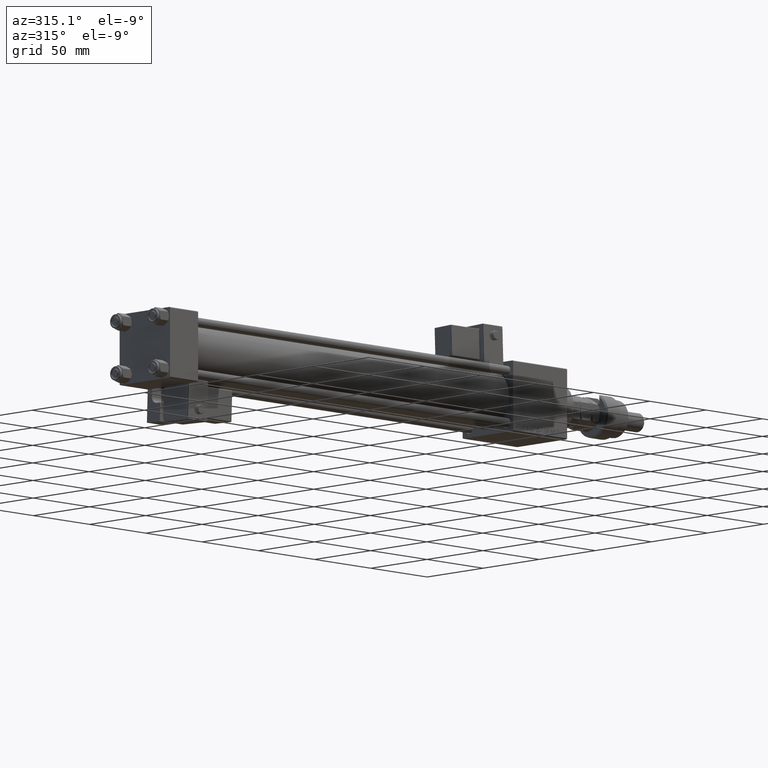
[diagram: clean part render]
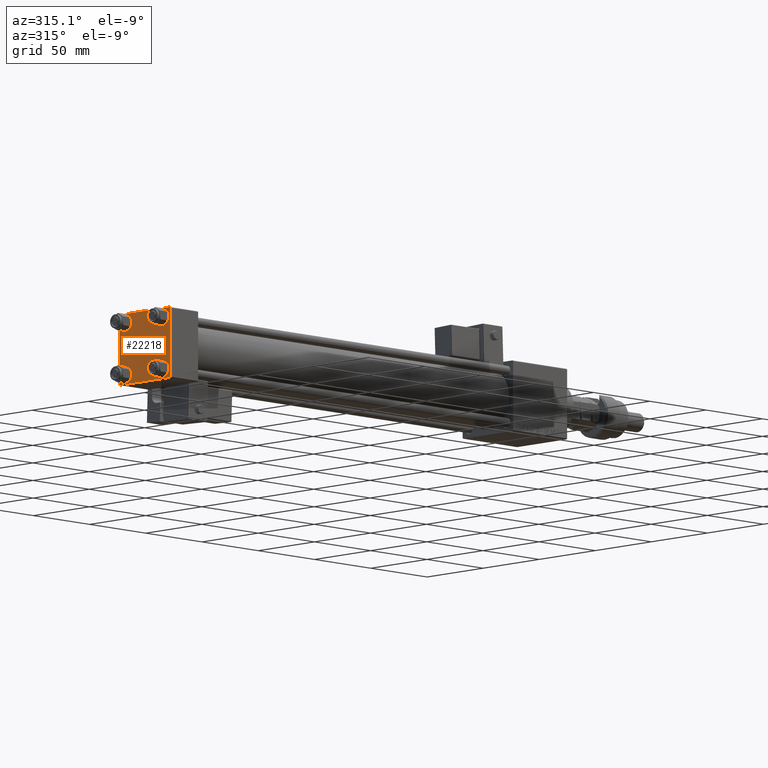
[diagram: same view with one face highlighted and labeled with its STEP entity id]
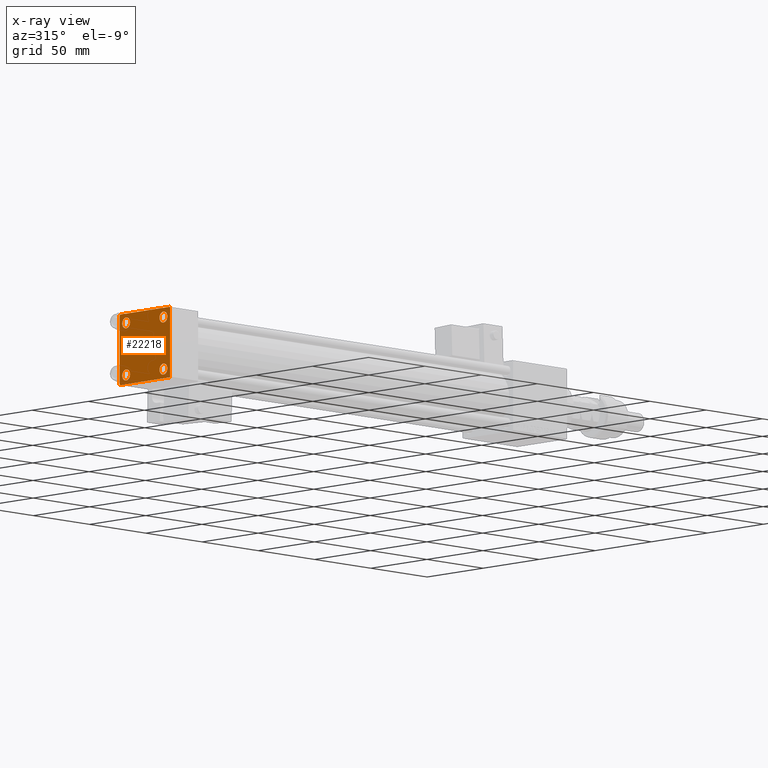
[diagram: x-ray of the same camera — body ghosted, the highlighted face saturated]
A machine part, auxiliary view. The second image highlights one B-rep face of the part: STEP entity #22218.
The next image is the same camera in x-ray: the body ghosted, the highlighted face saturated — about 0% of this face is hidden behind the body in this view.
In plain terms, the highlighted planar face has unit normal (-1, 0, 0).
Its self-contained STEP definition (entity closure, byte-faithful):
#746 = VECTOR ( 'NONE', #19546, 1000.000000000000114 ) ;
#1652 = EDGE_CURVE ( 'NONE', #17018, #5823, #42712, .T. ) ;
#1965 = EDGE_CURVE ( 'NONE', #40800, #10811, #4201, .T. ) ;
#2687 = DIRECTION ( 'NONE',  ( 0.000000000000000000, 0.000000000000000000, 1.000000000000000000 ) ) ;
#4185 = VERTEX_POINT ( 'NONE', #24151 ) ;
#4201 = CIRCLE ( 'NONE', #39191, 3.499999999999996003 ) ;
#4871 = CIRCLE ( 'NONE', #43356, 3.499999999999996003 ) ;
#5004 = ORIENTED_EDGE ( 'NONE', *, *, #20326, .T. ) ;
#5823 = VERTEX_POINT ( 'NONE', #10537 ) ;
#5930 = DIRECTION ( 'NONE',  ( 0.000000000000000000, 0.000000000000000000, 1.000000000000000000 ) ) ;
#5954 = DIRECTION ( 'NONE',  ( 0.000000000000000000, -1.000000000000000000, -7.709882115452476934E-17 ) ) ;
#6087 = CARTESIAN_POINT ( 'NONE',  ( 0.000000000000000000, 16.59999999999999787, -16.60000000000000497 ) ) ;
#6561 = DIRECTION ( 'NONE',  ( 0.000000000000000000, 0.000000000000000000, 1.000000000000000000 ) ) ;
#7610 = ORIENTED_EDGE ( 'NONE', *, *, #42105, .T. ) ;
#8315 = EDGE_CURVE ( 'NONE', #11201, #17018, #38627, .T. ) ;
#8803 = CARTESIAN_POINT ( 'NONE',  ( 0.000000000000000000, -21.99999999999997158, -22.50000000000000711 ) ) ;
#10010 = DIRECTION ( 'NONE',  ( -0.000000000000000000, -0.7071067811865426878, -0.7071067811865524577 ) ) ;
#10407 = EDGE_CURVE ( 'NONE', #28787, #4185, #35845, .T. ) ;
#10412 = CARTESIAN_POINT ( 'NONE',  ( 0.000000000000000000, 16.59999999999999787, 16.60000000000000497 ) ) ;
#10537 = CARTESIAN_POINT ( 'NONE',  ( 0.000000000000000000, -22.50000000000000000, -21.99999999999997158 ) ) ;
#10549 = CARTESIAN_POINT ( 'NONE',  ( 0.000000000000000000, 16.59999999999999787, -13.10000000000000675 ) ) ;
#10811 = VERTEX_POINT ( 'NONE', #32945 ) ;
#11201 = VERTEX_POINT ( 'NONE', #49186 ) ;
#11454 = EDGE_CURVE ( 'NONE', #41440, #26515, #36758, .T. ) ;
#12104 = CARTESIAN_POINT ( 'NONE',  ( 0.000000000000000000, -22.50000000000000000, 22.50000000000000000 ) ) ;
#12663 = CARTESIAN_POINT ( 'NONE',  ( 0.000000000000000000, -16.59999999999999076, 20.10000000000000853 ) ) ;
#12906 = ORIENTED_EDGE ( 'NONE', *, *, #13815, .F. ) ;
#13724 = CIRCLE ( 'NONE', #46816, 3.499999999999996003 ) ;
#13815 = EDGE_CURVE ( 'NONE', #25615, #5823, #41791, .T. ) ;
#14302 = VECTOR ( 'NONE', #47054, 1000.000000000000000 ) ;
#14605 = CARTESIAN_POINT ( 'NONE',  ( 0.000000000000000000, 16.59999999999999787, -20.10000000000000142 ) ) ;
#14632 = CARTESIAN_POINT ( 'NONE',  ( 0.000000000000000000, 21.99999999999999289, 22.50000000000000355 ) ) ;
#14717 = CARTESIAN_POINT ( 'NONE',  ( 0.000000000000000000, -21.99999999999997868, 22.50000000000000000 ) ) ;
#14972 = DIRECTION ( 'NONE',  ( 0.000000000000000000, 0.000000000000000000, -1.000000000000000000 ) ) ;
#14996 = CIRCLE ( 'NONE', #27498, 3.499999999999996003 ) ;
#15787 = CARTESIAN_POINT ( 'NONE',  ( 0.000000000000000000, -16.59999999999999076, -16.60000000000000853 ) ) ;
#15936 = FACE_OUTER_BOUND ( 'NONE', #38442, .T. ) ;
#16488 = DIRECTION ( 'NONE',  ( -1.000000000000000000, 0.000000000000000000, -0.000000000000000000 ) ) ;
#17018 = VERTEX_POINT ( 'NONE', #8803 ) ;
#17432 = CARTESIAN_POINT ( 'NONE',  ( 0.000000000000000000, -22.50000000000000000, 22.00000000000000000 ) ) ;
#18520 = AXIS2_PLACEMENT_3D ( 'NONE', #6087, #52899, #36891 ) ;
#18623 = CARTESIAN_POINT ( 'NONE',  ( 0.000000000000000000, 22.50000000000000000, 22.50000000000000355 ) ) ;
#19126 = CARTESIAN_POINT ( 'NONE',  ( 0.000000000000000000, 22.50000000000000000, 22.50000000000000355 ) ) ;
#19138 = CIRCLE ( 'NONE', #35186, 3.499999999999996003 ) ;
#19546 = DIRECTION ( 'NONE',  ( 0.000000000000000000, 0.7071067811865474617, -0.7071067811865474617 ) ) ;
#19780 = AXIS2_PLACEMENT_3D ( 'NONE', #29074, #16488, #46197 ) ;
#19866 = VERTEX_POINT ( 'NONE', #25594 ) ;
#20056 = DIRECTION ( 'NONE',  ( 0.000000000000000000, 0.000000000000000000, 1.000000000000000000 ) ) ;
#20141 = FACE_BOUND ( 'NONE', #21740, .T. ) ;
#20326 = EDGE_CURVE ( 'NONE', #29038, #48589, #19138, .T. ) ;
#20586 = ORIENTED_EDGE ( 'NONE', *, *, #48941, .T. ) ;
#20984 = CARTESIAN_POINT ( 'NONE',  ( 0.000000000000000000, 22.50000000000000000, -22.49999999999999645 ) ) ;
#21018 = ORIENTED_EDGE ( 'NONE', *, *, #43410, .T. ) ;
#21740 = EDGE_LOOP ( 'NONE', ( #20586, #41706 ) ) ;
#21806 = ORIENTED_EDGE ( 'NONE', *, *, #35473, .T. ) ;
#21972 = DIRECTION ( 'NONE',  ( 0.000000000000000000, -0.7071067811865426878, 0.7071067811865524577 ) ) ;
#22218 = ADVANCED_FACE ( 'NONE', ( #29342, #20141, #24879, #33819, #15936 ), #38041, .T. ) ;
#23387 = EDGE_LOOP ( 'NONE', ( #53270, #41904 ) ) ;
#23539 = CARTESIAN_POINT ( 'NONE',  ( 0.000000000000000000, 16.59999999999999787, 16.60000000000000497 ) ) ;
#23542 = LINE ( 'NONE', #31386, #54059 ) ;
#24039 = AXIS2_PLACEMENT_3D ( 'NONE', #23539, #31382, #35292 ) ;
#24151 = CARTESIAN_POINT ( 'NONE',  ( 0.000000000000000000, -16.59999999999999076, 13.10000000000001030 ) ) ;
#24660 = CARTESIAN_POINT ( 'NONE',  ( 0.000000000000000000, 16.59999999999999787, 13.10000000000000675 ) ) ;
#24879 = FACE_BOUND ( 'NONE', #49587, .T. ) ;
#25010 = DIRECTION ( 'NONE',  ( 0.000000000000000000, 0.000000000000000000, 1.000000000000000000 ) ) ;
#25594 = CARTESIAN_POINT ( 'NONE',  ( 0.000000000000000000, -16.59999999999999076, -20.10000000000000497 ) ) ;
#25615 = VERTEX_POINT ( 'NONE', #17432 ) ;
#26515 = VERTEX_POINT ( 'NONE', #14717 ) ;
#26803 = LINE ( 'NONE', #48412, #50768 ) ;
#26895 = DIRECTION ( 'NONE',  ( -0.000000000000000000, 0.7071067811865525687, 0.7071067811865425767 ) ) ;
#26932 = DIRECTION ( 'NONE',  ( 1.000000000000000000, -0.000000000000000000, 0.000000000000000000 ) ) ;
#27498 = AXIS2_PLACEMENT_3D ( 'NONE', #15787, #32857, #6561 ) ;
#27668 = CARTESIAN_POINT ( 'NONE',  ( 0.000000000000000000, 22.24999999999999645, 22.24999999999999645 ) ) ;
#28787 = VERTEX_POINT ( 'NONE', #12663 ) ;
#28990 = DIRECTION ( 'NONE',  ( 1.000000000000000000, -0.000000000000000000, 0.000000000000000000 ) ) ;
#29038 = VERTEX_POINT ( 'NONE', #14605 ) ;
#29074 = CARTESIAN_POINT ( 'NONE',  ( 0.000000000000000000, 0.000000000000000000, 0.000000000000000000 ) ) ;
#29164 = DIRECTION ( 'NONE',  ( 0.000000000000000000, 0.000000000000000000, -1.000000000000000000 ) ) ;
#29342 = FACE_BOUND ( 'NONE', #41013, .T. ) ;
#29423 = CARTESIAN_POINT ( 'NONE',  ( 0.000000000000000000, -16.59999999999999076, -13.10000000000001030 ) ) ;
#30552 = VECTOR ( 'NONE', #5954, 1000.000000000000000 ) ;
#30607 = EDGE_CURVE ( 'NONE', #4185, #28787, #13724, .T. ) ;
#30874 = CARTESIAN_POINT ( 'NONE',  ( 0.000000000000000000, 22.50000000000000000, -21.99999999999996803 ) ) ;
#31382 = DIRECTION ( 'NONE',  ( 1.000000000000000000, -0.000000000000000000, 0.000000000000000000 ) ) ;
#31386 = CARTESIAN_POINT ( 'NONE',  ( -0.000000000000000000, -22.24999999999984013, 22.25000000000015277 ) ) ;
#32102 = CARTESIAN_POINT ( 'NONE',  ( 0.000000000000000000, 16.59999999999999787, -16.60000000000000497 ) ) ;
#32857 = DIRECTION ( 'NONE',  ( 1.000000000000000000, -0.000000000000000000, 0.000000000000000000 ) ) ;
#32945 = CARTESIAN_POINT ( 'NONE',  ( 0.000000000000000000, 16.59999999999999787, 20.10000000000000142 ) ) ;
#33166 = CARTESIAN_POINT ( 'NONE',  ( 0.000000000000000000, -16.59999999999999076, -16.60000000000000853 ) ) ;
#33819 = FACE_BOUND ( 'NONE', #23387, .T. ) ;
#34004 = CARTESIAN_POINT ( 'NONE',  ( 0.000000000000000000, -22.25000000000014566, -22.24999999999984013 ) ) ;
#35186 = AXIS2_PLACEMENT_3D ( 'NONE', #32102, #49228, #2687 ) ;
#35292 = DIRECTION ( 'NONE',  ( 0.000000000000000000, 0.000000000000000000, 1.000000000000000000 ) ) ;
#35473 = EDGE_CURVE ( 'NONE', #25615, #26515, #23542, .T. ) ;
#35583 = VECTOR ( 'NONE', #14972, 1000.000000000000000 ) ;
#35845 = CIRCLE ( 'NONE', #43004, 3.499999999999996003 ) ;
#35952 = EDGE_CURVE ( 'NONE', #19866, #44861, #4871, .T. ) ;
#36758 = LINE ( 'NONE', #19126, #30552 ) ;
#36891 = DIRECTION ( 'NONE',  ( 0.000000000000000000, 0.000000000000000000, 1.000000000000000000 ) ) ;
#37927 = DIRECTION ( 'NONE',  ( 1.000000000000000000, -0.000000000000000000, 0.000000000000000000 ) ) ;
#38041 = PLANE ( 'NONE',  #19780 ) ;
#38101 = VERTEX_POINT ( 'NONE', #49732 ) ;
#38220 = CIRCLE ( 'NONE', #18520, 3.499999999999996003 ) ;
#38227 = CARTESIAN_POINT ( 'NONE',  ( 0.000000000000000000, -16.59999999999999076, 16.60000000000000853 ) ) ;
#38442 = EDGE_LOOP ( 'NONE', ( #21018, #7610, #47879, #41442, #12906, #21806, #47575, #44331 ) ) ;
#38627 = LINE ( 'NONE', #20984, #14302 ) ;
#38947 = ORIENTED_EDGE ( 'NONE', *, *, #30607, .T. ) ;
#39191 = AXIS2_PLACEMENT_3D ( 'NONE', #10412, #26932, #5930 ) ;
#40800 = VERTEX_POINT ( 'NONE', #24660 ) ;
#40831 = ORIENTED_EDGE ( 'NONE', *, *, #42209, .T. ) ;
#41013 = EDGE_LOOP ( 'NONE', ( #50373, #38947 ) ) ;
#41440 = VERTEX_POINT ( 'NONE', #14632 ) ;
#41442 = ORIENTED_EDGE ( 'NONE', *, *, #1652, .T. ) ;
#41706 = ORIENTED_EDGE ( 'NONE', *, *, #35952, .T. ) ;
#41791 = LINE ( 'NONE', #12104, #50353 ) ;
#41885 = VECTOR ( 'NONE', #21972, 1000.000000000000000 ) ;
#41904 = ORIENTED_EDGE ( 'NONE', *, *, #1965, .T. ) ;
#42105 = EDGE_CURVE ( 'NONE', #49696, #11201, #26803, .T. ) ;
#42209 = EDGE_CURVE ( 'NONE', #48589, #29038, #38220, .T. ) ;
#42712 = LINE ( 'NONE', #34004, #41885 ) ;
#42789 = CIRCLE ( 'NONE', #24039, 3.499999999999996003 ) ;
#43004 = AXIS2_PLACEMENT_3D ( 'NONE', #46883, #54468, #25010 ) ;
#43356 = AXIS2_PLACEMENT_3D ( 'NONE', #33166, #37927, #46630 ) ;
#43410 = EDGE_CURVE ( 'NONE', #38101, #49696, #53931, .T. ) ;
#44331 = ORIENTED_EDGE ( 'NONE', *, *, #51244, .T. ) ;
#44861 = VERTEX_POINT ( 'NONE', #29423 ) ;
#45128 = EDGE_CURVE ( 'NONE', #10811, #40800, #42789, .T. ) ;
#46197 = DIRECTION ( 'NONE',  ( -0.000000000000000000, 0.000000000000000000, 1.000000000000000000 ) ) ;
#46630 = DIRECTION ( 'NONE',  ( 0.000000000000000000, 0.000000000000000000, 1.000000000000000000 ) ) ;
#46816 = AXIS2_PLACEMENT_3D ( 'NONE', #38227, #28990, #20056 ) ;
#46883 = CARTESIAN_POINT ( 'NONE',  ( 0.000000000000000000, -16.59999999999999076, 16.60000000000000853 ) ) ;
#47054 = DIRECTION ( 'NONE',  ( 0.000000000000000000, -1.000000000000000000, -2.312964634635742957E-16 ) ) ;
#47575 = ORIENTED_EDGE ( 'NONE', *, *, #11454, .F. ) ;
#47879 = ORIENTED_EDGE ( 'NONE', *, *, #8315, .T. ) ;
#48412 = CARTESIAN_POINT ( 'NONE',  ( 0.000000000000000000, 22.25000000000014566, -22.24999999999984013 ) ) ;
#48589 = VERTEX_POINT ( 'NONE', #10549 ) ;
#48941 = EDGE_CURVE ( 'NONE', #44861, #19866, #14996, .T. ) ;
#49186 = CARTESIAN_POINT ( 'NONE',  ( 0.000000000000000000, 21.99999999999999289, -22.49999999999999645 ) ) ;
#49228 = DIRECTION ( 'NONE',  ( 1.000000000000000000, -0.000000000000000000, 0.000000000000000000 ) ) ;
#49587 = EDGE_LOOP ( 'NONE', ( #40831, #5004 ) ) ;
#49696 = VERTEX_POINT ( 'NONE', #30874 ) ;
#49732 = CARTESIAN_POINT ( 'NONE',  ( 0.000000000000000000, 22.50000000000000000, 21.99999999999999645 ) ) ;
#49821 = LINE ( 'NONE', #27668, #746 ) ;
#50353 = VECTOR ( 'NONE', #29164, 1000.000000000000000 ) ;
#50373 = ORIENTED_EDGE ( 'NONE', *, *, #10407, .T. ) ;
#50768 = VECTOR ( 'NONE', #10010, 1000.000000000000000 ) ;
#51244 = EDGE_CURVE ( 'NONE', #41440, #38101, #49821, .T. ) ;
#52899 = DIRECTION ( 'NONE',  ( 1.000000000000000000, -0.000000000000000000, 0.000000000000000000 ) ) ;
#53270 = ORIENTED_EDGE ( 'NONE', *, *, #45128, .T. ) ;
#53931 = LINE ( 'NONE', #18623, #35583 ) ;
#54059 = VECTOR ( 'NONE', #26895, 999.9999999999998863 ) ;
#54468 = DIRECTION ( 'NONE',  ( 1.000000000000000000, -0.000000000000000000, 0.000000000000000000 ) ) ;